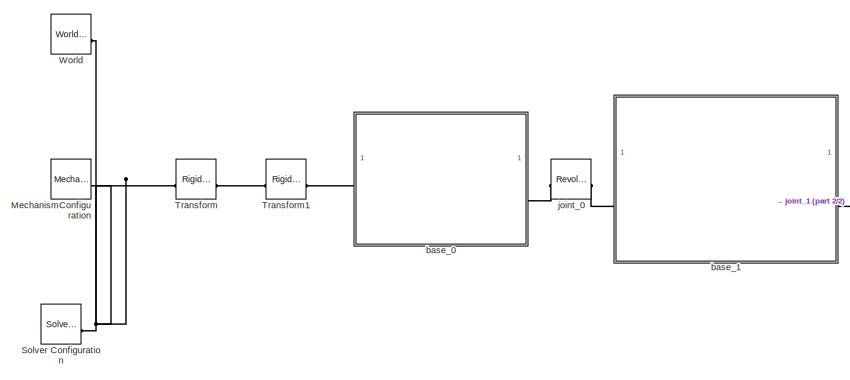
[diagram: root canvas - part 1/2, left side, full height]
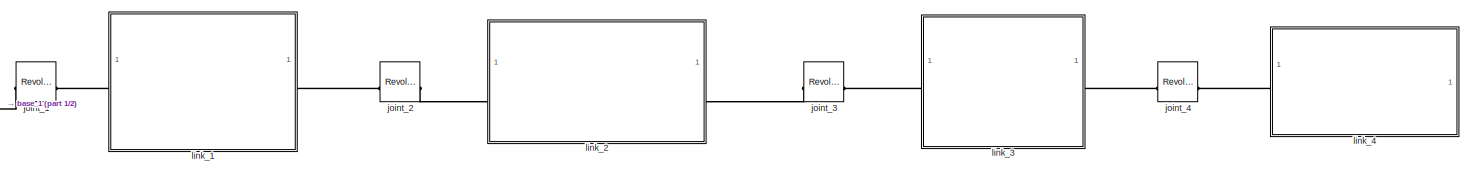
[diagram: root canvas - part 2/2, middle right region]
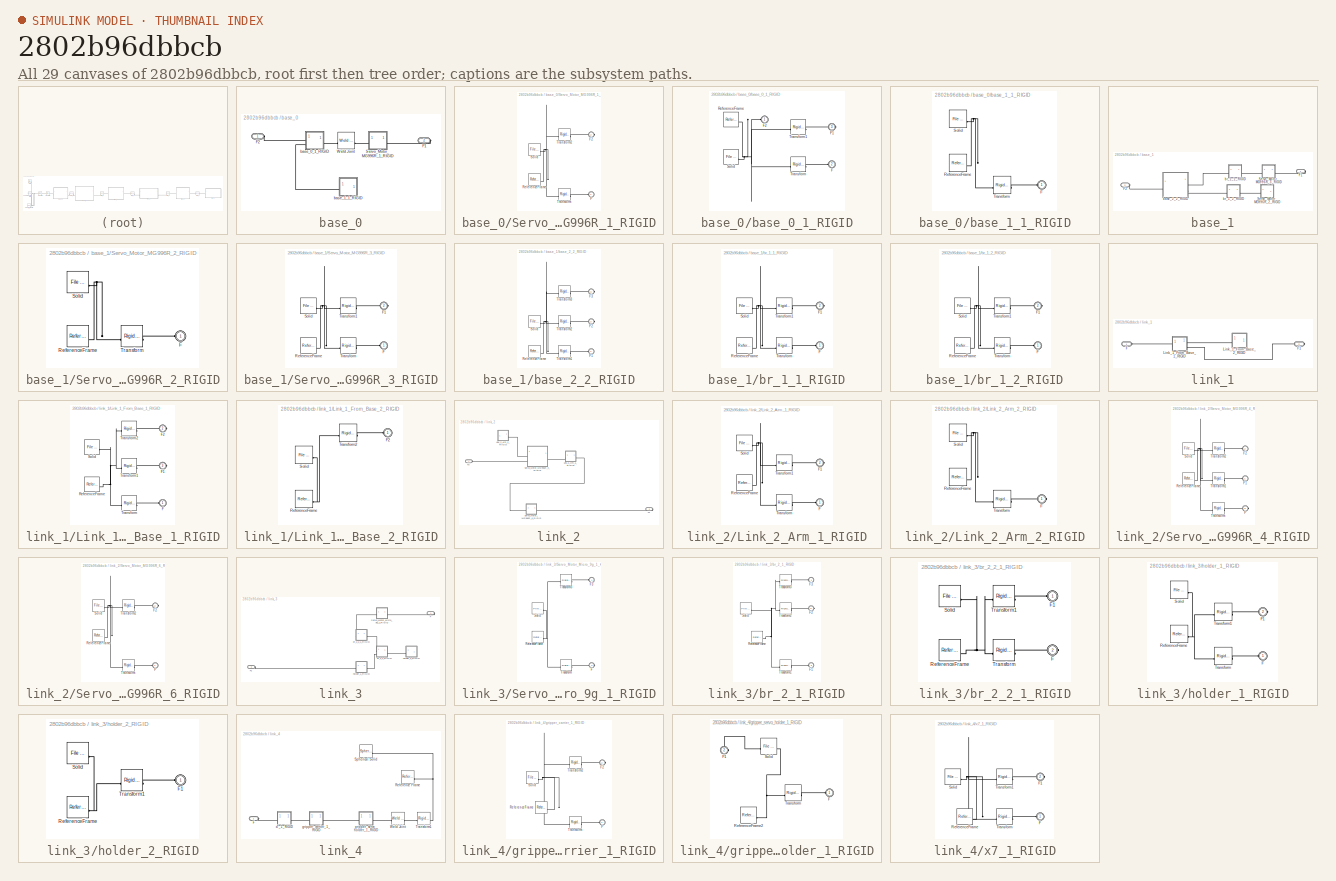
[diagram: thumbnail index - all 29 canvases of the model, root first then tree order]
MODEL slx_2802b96dbbcb
KIND model
CONFIG AbsTol = auto
CONFIG EnableMultiTasking = off
CONFIG FixedStep = auto
CONFIG MaxStep = auto
CONFIG MinStep = auto
CONFIG RelTol = 1e-3
CONFIG SampleTimeConstraint = Unconstrained
CONFIG SolverName = VariableStepAuto
CONFIG StartTime = 0.0
CONFIG StopTime = 10.0
WORKSPACE source: external: MATLAB File  (data not in archive)
BLOCK [Reference] MechanismConfiguration  REF=sm_lib/Utilities/Mechanism
Configuration
  SourceBlock = sm_lib/Utilities/Mechanism\nConfiguration
  SourceType = Mechanism\nConfiguration
BLOCK [Reference] Solver Configuration  REF=nesl_utility/Solver
Configuration
  SourceBlock = nesl_utility/Solver\nConfiguration
  SourceType = Solver\nConfiguration
BLOCK [Reference] Transform  REF=sm_lib/Frames and
Transforms/Rigid
Transform
  SourceBlock = sm_lib/Frames and\nTransforms/Rigid\nTransform
  SourceType = Rigid\nTransform
BLOCK [Reference] Transform1  REF=sm_lib/Frames and
Transforms/Rigid
Transform
  SourceBlock = sm_lib/Frames and\nTransforms/Rigid\nTransform
  SourceType = Rigid\nTransform
BLOCK [Reference] World  REF=sm_lib/Frames and
Transforms/World Frame
  SourceBlock = sm_lib/Frames and\nTransforms/World Frame
  SourceType = World Frame
BLOCK [SubSystem] base_0
BLOCK [PMIOPort] base_0/F1
  Port = 2
  Side = Right
BLOCK [PMIOPort] base_0/F2
  Side = Left
BLOCK [SubSystem] base_0/Servo_Motor_MG996R_1_RIGID
BLOCK [PMIOPort] base_0/Servo_Motor_MG996R_1_RIGID/F
  Side = Left
BLOCK [PMIOPort] base_0/Servo_Motor_MG996R_1_RIGID/F2
  Port = 2
  Side = Right
BLOCK [Reference] base_0/Servo_Motor_MG996R_1_RIGID/ReferenceFrame  REF=sm_lib/Frames and
Transforms/Reference
Frame
  SourceBlock = sm_lib/Frames and\nTransforms/Reference\nFrame
  SourceType = Reference\nFrame
BLOCK [Reference] base_0/Servo_Motor_MG996R_1_RIGID/Solid  REF=sm_lib/Body Elements/File Solid
  SourceBlock = sm_lib/Body Elements/File Solid
  SourceType = File Solid
BLOCK [Reference] base_0/Servo_Motor_MG996R_1_RIGID/Transform  REF=sm_lib/Frames and
Transforms/Rigid
Transform
  SourceBlock = sm_lib/Frames and\nTransforms/Rigid\nTransform
  SourceType = Rigid\nTransform
BLOCK [Reference] base_0/Servo_Motor_MG996R_1_RIGID/Transform2  REF=sm_lib/Frames and
Transforms/Rigid
Transform
  SourceBlock = sm_lib/Frames and\nTransforms/Rigid\nTransform
  SourceType = Rigid\nTransform
BLOCK [Reference] base_0/Weld Joint  REF=sm_lib/Joints/Weld Joint
  SourceBlock = sm_lib/Joints/Weld Joint
  SourceType = Weld Joint
BLOCK [SubSystem] base_0/base_0_1_RIGID
BLOCK [PMIOPort] base_0/base_0_1_RIGID/F
  Port = 2
  Side = Left
BLOCK [PMIOPort] base_0/base_0_1_RIGID/F1
  Port = 3
  Side = Right
BLOCK [PMIOPort] base_0/base_0_1_RIGID/F2
  Side = Left
BLOCK [Reference] base_0/base_0_1_RIGID/ReferenceFrame  REF=sm_lib/Frames and
Transforms/Reference
Frame
  SourceBlock = sm_lib/Frames and\nTransforms/Reference\nFrame
  SourceType = Reference\nFrame
BLOCK [Reference] base_0/base_0_1_RIGID/Solid  REF=sm_lib/Body Elements/File Solid
  SourceBlock = sm_lib/Body Elements/File Solid
  SourceType = File Solid
BLOCK [Reference] base_0/base_0_1_RIGID/Transform  REF=sm_lib/Frames and
Transforms/Rigid
Transform
  SourceBlock = sm_lib/Frames and\nTransforms/Rigid\nTransform
  SourceType = Rigid\nTransform
BLOCK [Reference] base_0/base_0_1_RIGID/Transform1  REF=sm_lib/Frames and
Transforms/Rigid
Transform
  SourceBlock = sm_lib/Frames and\nTransforms/Rigid\nTransform
  SourceType = Rigid\nTransform
BLOCK [SubSystem] base_0/base_1_1_RIGID
BLOCK [PMIOPort] base_0/base_1_1_RIGID/F
  Side = Left
BLOCK [Reference] base_0/base_1_1_RIGID/ReferenceFrame  REF=sm_lib/Frames and
Transforms/Reference
Frame
  SourceBlock = sm_lib/Frames and\nTransforms/Reference\nFrame
  SourceType = Reference\nFrame
BLOCK [Reference] base_0/base_1_1_RIGID/Solid  REF=sm_lib/Body Elements/File Solid
  SourceBlock = sm_lib/Body Elements/File Solid
  SourceType = File Solid
BLOCK [Reference] base_0/base_1_1_RIGID/Transform  REF=sm_lib/Frames and
Transforms/Rigid
Transform
  SourceBlock = sm_lib/Frames and\nTransforms/Rigid\nTransform
  SourceType = Rigid\nTransform
BLOCK [SubSystem] base_1
BLOCK [PMIOPort] base_1/F1
  Side = Right
BLOCK [PMIOPort] base_1/F2
  Port = 2
  Side = Left
BLOCK [SubSystem] base_1/Servo_Motor_MG996R_2_RIGID
BLOCK [PMIOPort] base_1/Servo_Motor_MG996R_2_RIGID/F
  Side = Left
BLOCK [Reference] base_1/Servo_Motor_MG996R_2_RIGID/ReferenceFrame  REF=sm_lib/Frames and
Transforms/Reference
Frame
  SourceBlock = sm_lib/Frames and\nTransforms/Reference\nFrame
  SourceType = Reference\nFrame
BLOCK [Reference] base_1/Servo_Motor_MG996R_2_RIGID/Solid  REF=sm_lib/Body Elements/File Solid
  SourceBlock = sm_lib/Body Elements/File Solid
  SourceType = File Solid
BLOCK [Reference] base_1/Servo_Motor_MG996R_2_RIGID/Transform  REF=sm_lib/Frames and
Transforms/Rigid
Transform
  SourceBlock = sm_lib/Frames and\nTransforms/Rigid\nTransform
  SourceType = Rigid\nTransform
BLOCK [SubSystem] base_1/Servo_Motor_MG996R_3_RIGID
BLOCK [PMIOPort] base_1/Servo_Motor_MG996R_3_RIGID/F
  Side = Left
BLOCK [PMIOPort] base_1/Servo_Motor_MG996R_3_RIGID/F1
  Port = 2
  Side = Right
BLOCK [Reference] base_1/Servo_Motor_MG996R_3_RIGID/ReferenceFrame  REF=sm_lib/Frames and
Transforms/Reference
Frame
  SourceBlock = sm_lib/Frames and\nTransforms/Reference\nFrame
  SourceType = Reference\nFrame
BLOCK [Reference] base_1/Servo_Motor_MG996R_3_RIGID/Solid  REF=sm_lib/Body Elements/File Solid
  SourceBlock = sm_lib/Body Elements/File Solid
  SourceType = File Solid
BLOCK [Reference] base_1/Servo_Motor_MG996R_3_RIGID/Transform  REF=sm_lib/Frames and
Transforms/Rigid
Transform
  SourceBlock = sm_lib/Frames and\nTransforms/Rigid\nTransform
  SourceType = Rigid\nTransform
BLOCK [Reference] base_1/Servo_Motor_MG996R_3_RIGID/Transform1  REF=sm_lib/Frames and
Transforms/Rigid
Transform
  SourceBlock = sm_lib/Frames and\nTransforms/Rigid\nTransform
  SourceType = Rigid\nTransform
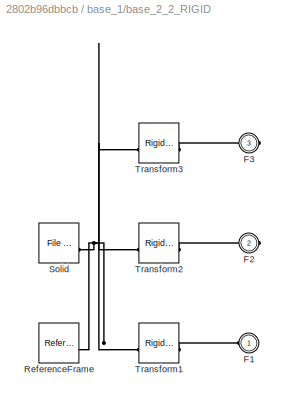
BLOCK [SubSystem] base_1/base_2_2_RIGID
BLOCK [PMIOPort] base_1/base_2_2_RIGID/F1
  Side = Left
BLOCK [PMIOPort] base_1/base_2_2_RIGID/F2
  Port = 2
  Side = Right
BLOCK [PMIOPort] base_1/base_2_2_RIGID/F3
  Port = 3
  Side = Right
BLOCK [Reference] base_1/base_2_2_RIGID/ReferenceFrame  REF=sm_lib/Frames and
Transforms/Reference
Frame
  SourceBlock = sm_lib/Frames and\nTransforms/Reference\nFrame
  SourceType = Reference\nFrame
BLOCK [Reference] base_1/base_2_2_RIGID/Solid  REF=sm_lib/Body Elements/File Solid
  SourceBlock = sm_lib/Body Elements/File Solid
  SourceType = File Solid
BLOCK [Reference] base_1/base_2_2_RIGID/Transform1  REF=sm_lib/Frames and
Transforms/Rigid
Transform
  SourceBlock = sm_lib/Frames and\nTransforms/Rigid\nTransform
  SourceType = Rigid\nTransform
BLOCK [Reference] base_1/base_2_2_RIGID/Transform2  REF=sm_lib/Frames and
Transforms/Rigid
Transform
  SourceBlock = sm_lib/Frames and\nTransforms/Rigid\nTransform
  SourceType = Rigid\nTransform
BLOCK [Reference] base_1/base_2_2_RIGID/Transform3  REF=sm_lib/Frames and
Transforms/Rigid
Transform
  SourceBlock = sm_lib/Frames and\nTransforms/Rigid\nTransform
  SourceType = Rigid\nTransform
BLOCK [SubSystem] base_1/br_1_1_RIGID
BLOCK [PMIOPort] base_1/br_1_1_RIGID/F
  Side = Left
BLOCK [PMIOPort] base_1/br_1_1_RIGID/F1
  Port = 2
  Side = Right
BLOCK [Reference] base_1/br_1_1_RIGID/ReferenceFrame  REF=sm_lib/Frames and
Transforms/Reference
Frame
  SourceBlock = sm_lib/Frames and\nTransforms/Reference\nFrame
  SourceType = Reference\nFrame
BLOCK [Reference] base_1/br_1_1_RIGID/Solid  REF=sm_lib/Body Elements/File Solid
  SourceBlock = sm_lib/Body Elements/File Solid
  SourceType = File Solid
BLOCK [Reference] base_1/br_1_1_RIGID/Transform  REF=sm_lib/Frames and
Transforms/Rigid
Transform
  SourceBlock = sm_lib/Frames and\nTransforms/Rigid\nTransform
  SourceType = Rigid\nTransform
BLOCK [Reference] base_1/br_1_1_RIGID/Transform1  REF=sm_lib/Frames and
Transforms/Rigid
Transform
  SourceBlock = sm_lib/Frames and\nTransforms/Rigid\nTransform
  SourceType = Rigid\nTransform
BLOCK [SubSystem] base_1/br_1_2_RIGID
BLOCK [PMIOPort] base_1/br_1_2_RIGID/F
  Side = Left
BLOCK [PMIOPort] base_1/br_1_2_RIGID/F1
  Port = 2
  Side = Right
BLOCK [Reference] base_1/br_1_2_RIGID/ReferenceFrame  REF=sm_lib/Frames and
Transforms/Reference
Frame
  SourceBlock = sm_lib/Frames and\nTransforms/Reference\nFrame
  SourceType = Reference\nFrame
BLOCK [Reference] base_1/br_1_2_RIGID/Solid  REF=sm_lib/Body Elements/File Solid
  SourceBlock = sm_lib/Body Elements/File Solid
  SourceType = File Solid
BLOCK [Reference] base_1/br_1_2_RIGID/Transform  REF=sm_lib/Frames and
Transforms/Rigid
Transform
  SourceBlock = sm_lib/Frames and\nTransforms/Rigid\nTransform
  SourceType = Rigid\nTransform
BLOCK [Reference] base_1/br_1_2_RIGID/Transform1  REF=sm_lib/Frames and
Transforms/Rigid
Transform
  SourceBlock = sm_lib/Frames and\nTransforms/Rigid\nTransform
  SourceType = Rigid\nTransform
BLOCK [Reference] joint_0  REF=sm_lib/Joints/Revolute Joint
  SourceBlock = sm_lib/Joints/Revolute Joint
  SourceType = Revolute Joint
BLOCK [Reference] joint_1  REF=sm_lib/Joints/Revolute Joint
  SourceBlock = sm_lib/Joints/Revolute Joint
  SourceType = Revolute Joint
BLOCK [Reference] joint_2  REF=sm_lib/Joints/Revolute Joint
  SourceBlock = sm_lib/Joints/Revolute Joint
  SourceType = Revolute Joint
BLOCK [Reference] joint_3  REF=sm_lib/Joints/Revolute Joint
  SourceBlock = sm_lib/Joints/Revolute Joint
  SourceType = Revolute Joint
BLOCK [Reference] joint_4  REF=sm_lib/Joints/Revolute Joint
  SourceBlock = sm_lib/Joints/Revolute Joint
  SourceType = Revolute Joint
BLOCK [SubSystem] link_1
BLOCK [PMIOPort] link_1/F
  Side = Left
BLOCK [PMIOPort] link_1/F1
  Port = 2
  Side = Right
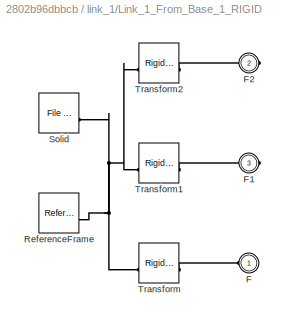
BLOCK [SubSystem] link_1/Link_1_From_Base_1_RIGID
BLOCK [PMIOPort] link_1/Link_1_From_Base_1_RIGID/F
  Side = Left
BLOCK [PMIOPort] link_1/Link_1_From_Base_1_RIGID/F1
  Port = 3
  Side = Right
BLOCK [PMIOPort] link_1/Link_1_From_Base_1_RIGID/F2
  Port = 2
  Side = Right
BLOCK [Reference] link_1/Link_1_From_Base_1_RIGID/ReferenceFrame  REF=sm_lib/Frames and
Transforms/Reference
Frame
  SourceBlock = sm_lib/Frames and\nTransforms/Reference\nFrame
  SourceType = Reference\nFrame
BLOCK [Reference] link_1/Link_1_From_Base_1_RIGID/Solid  REF=sm_lib/Body Elements/File Solid
  SourceBlock = sm_lib/Body Elements/File Solid
  SourceType = File Solid
BLOCK [Reference] link_1/Link_1_From_Base_1_RIGID/Transform  REF=sm_lib/Frames and
Transforms/Rigid
Transform
  SourceBlock = sm_lib/Frames and\nTransforms/Rigid\nTransform
  SourceType = Rigid\nTransform
BLOCK [Reference] link_1/Link_1_From_Base_1_RIGID/Transform1  REF=sm_lib/Frames and
Transforms/Rigid
Transform
  SourceBlock = sm_lib/Frames and\nTransforms/Rigid\nTransform
  SourceType = Rigid\nTransform
BLOCK [Reference] link_1/Link_1_From_Base_1_RIGID/Transform2  REF=sm_lib/Frames and
Transforms/Rigid
Transform
  SourceBlock = sm_lib/Frames and\nTransforms/Rigid\nTransform
  SourceType = Rigid\nTransform
BLOCK [SubSystem] link_1/Link_1_From_Base_2_RIGID
BLOCK [PMIOPort] link_1/Link_1_From_Base_2_RIGID/F2
  Side = Left
BLOCK [Reference] link_1/Link_1_From_Base_2_RIGID/ReferenceFrame  REF=sm_lib/Frames and
Transforms/Reference
Frame
  SourceBlock = sm_lib/Frames and\nTransforms/Reference\nFrame
  SourceType = Reference\nFrame
BLOCK [Reference] link_1/Link_1_From_Base_2_RIGID/Solid  REF=sm_lib/Body Elements/File Solid
  SourceBlock = sm_lib/Body Elements/File Solid
  SourceType = File Solid
BLOCK [Reference] link_1/Link_1_From_Base_2_RIGID/Transform2  REF=sm_lib/Frames and
Transforms/Rigid
Transform
  SourceBlock = sm_lib/Frames and\nTransforms/Rigid\nTransform
  SourceType = Rigid\nTransform
BLOCK [SubSystem] link_2
BLOCK [PMIOPort] link_2/F1
  Port = 2
  Side = Right
BLOCK [PMIOPort] link_2/F2
  Side = Left
BLOCK [SubSystem] link_2/Link_2_Arm_1_RIGID
BLOCK [PMIOPort] link_2/Link_2_Arm_1_RIGID/F
  Side = Left
BLOCK [PMIOPort] link_2/Link_2_Arm_1_RIGID/F1
  Port = 2
  Side = Right
BLOCK [Reference] link_2/Link_2_Arm_1_RIGID/ReferenceFrame  REF=sm_lib/Frames and
Transforms/Reference
Frame
  SourceBlock = sm_lib/Frames and\nTransforms/Reference\nFrame
  SourceType = Reference\nFrame
BLOCK [Reference] link_2/Link_2_Arm_1_RIGID/Solid  REF=sm_lib/Body Elements/File Solid
  SourceBlock = sm_lib/Body Elements/File Solid
  SourceType = File Solid
BLOCK [Reference] link_2/Link_2_Arm_1_RIGID/Transform  REF=sm_lib/Frames and
Transforms/Rigid
Transform
  SourceBlock = sm_lib/Frames and\nTransforms/Rigid\nTransform
  SourceType = Rigid\nTransform
BLOCK [Reference] link_2/Link_2_Arm_1_RIGID/Transform1  REF=sm_lib/Frames and
Transforms/Rigid
Transform
  SourceBlock = sm_lib/Frames and\nTransforms/Rigid\nTransform
  SourceType = Rigid\nTransform
BLOCK [SubSystem] link_2/Link_2_Arm_2_RIGID
BLOCK [PMIOPort] link_2/Link_2_Arm_2_RIGID/F
  Side = Right
BLOCK [Reference] link_2/Link_2_Arm_2_RIGID/ReferenceFrame  REF=sm_lib/Frames and
Transforms/Reference
Frame
  SourceBlock = sm_lib/Frames and\nTransforms/Reference\nFrame
  SourceType = Reference\nFrame
BLOCK [Reference] link_2/Link_2_Arm_2_RIGID/Solid  REF=sm_lib/Body Elements/File Solid
  SourceBlock = sm_lib/Body Elements/File Solid
  SourceType = File Solid
BLOCK [Reference] link_2/Link_2_Arm_2_RIGID/Transform  REF=sm_lib/Frames and
Transforms/Rigid
Transform
  SourceBlock = sm_lib/Frames and\nTransforms/Rigid\nTransform
  SourceType = Rigid\nTransform
BLOCK [SubSystem] link_2/Servo_Motor_MG996R_4_RIGID
BLOCK [PMIOPort] link_2/Servo_Motor_MG996R_4_RIGID/F
  Port = 3
  Side = Right
BLOCK [PMIOPort] link_2/Servo_Motor_MG996R_4_RIGID/F1
  Side = Left
BLOCK [PMIOPort] link_2/Servo_Motor_MG996R_4_RIGID/F2
  Port = 2
  Side = Left
BLOCK [Reference] link_2/Servo_Motor_MG996R_4_RIGID/ReferenceFrame  REF=sm_lib/Frames and
Transforms/Reference
Frame
  SourceBlock = sm_lib/Frames and\nTransforms/Reference\nFrame
  SourceType = Reference\nFrame
BLOCK [Reference] link_2/Servo_Motor_MG996R_4_RIGID/Solid  REF=sm_lib/Body Elements/File Solid
  SourceBlock = sm_lib/Body Elements/File Solid
  SourceType = File Solid
BLOCK [Reference] link_2/Servo_Motor_MG996R_4_RIGID/Transform  REF=sm_lib/Frames and
Transforms/Rigid
Transform
  SourceBlock = sm_lib/Frames and\nTransforms/Rigid\nTransform
  SourceType = Rigid\nTransform
BLOCK [Reference] link_2/Servo_Motor_MG996R_4_RIGID/Transform1  REF=sm_lib/Frames and
Transforms/Rigid
Transform
  SourceBlock = sm_lib/Frames and\nTransforms/Rigid\nTransform
  SourceType = Rigid\nTransform
BLOCK [Reference] link_2/Servo_Motor_MG996R_4_RIGID/Transform2  REF=sm_lib/Frames and
Transforms/Rigid
Transform
  SourceBlock = sm_lib/Frames and\nTransforms/Rigid\nTransform
  SourceType = Rigid\nTransform
BLOCK [SubSystem] link_2/Servo_Motor_MG996R_6_RIGID
BLOCK [PMIOPort] link_2/Servo_Motor_MG996R_6_RIGID/F
  Side = Left
BLOCK [PMIOPort] link_2/Servo_Motor_MG996R_6_RIGID/F2
  Port = 2
  Side = Right
BLOCK [Reference] link_2/Servo_Motor_MG996R_6_RIGID/ReferenceFrame  REF=sm_lib/Frames and
Transforms/Reference
Frame
  SourceBlock = sm_lib/Frames and\nTransforms/Reference\nFrame
  SourceType = Reference\nFrame
BLOCK [Reference] link_2/Servo_Motor_MG996R_6_RIGID/Solid  REF=sm_lib/Body Elements/File Solid
  SourceBlock = sm_lib/Body Elements/File Solid
  SourceType = File Solid
BLOCK [Reference] link_2/Servo_Motor_MG996R_6_RIGID/Transform  REF=sm_lib/Frames and
Transforms/Rigid
Transform
  SourceBlock = sm_lib/Frames and\nTransforms/Rigid\nTransform
  SourceType = Rigid\nTransform
BLOCK [Reference] link_2/Servo_Motor_MG996R_6_RIGID/Transform2  REF=sm_lib/Frames and
Transforms/Rigid
Transform
  SourceBlock = sm_lib/Frames and\nTransforms/Rigid\nTransform
  SourceType = Rigid\nTransform
BLOCK [SubSystem] link_3
BLOCK [PMIOPort] link_3/F
  Side = Right
BLOCK [PMIOPort] link_3/F1
  Port = 2
  Side = Left
BLOCK [SubSystem] link_3/Servo_Motor_Micro_9g_1_RIGID
BLOCK [PMIOPort] link_3/Servo_Motor_Micro_9g_1_RIGID/F
  Port = 2
  Side = Right
BLOCK [PMIOPort] link_3/Servo_Motor_Micro_9g_1_RIGID/F3
  Side = Left
BLOCK [Reference] link_3/Servo_Motor_Micro_9g_1_RIGID/ReferenceFrame  REF=sm_lib/Frames and
Transforms/Reference
Frame
  SourceBlock = sm_lib/Frames and\nTransforms/Reference\nFrame
  SourceType = Reference\nFrame
BLOCK [Reference] link_3/Servo_Motor_Micro_9g_1_RIGID/Solid  REF=sm_lib/Body Elements/File Solid
  SourceBlock = sm_lib/Body Elements/File Solid
  SourceType = File Solid
BLOCK [Reference] link_3/Servo_Motor_Micro_9g_1_RIGID/Transform  REF=sm_lib/Frames and
Transforms/Rigid
Transform
  SourceBlock = sm_lib/Frames and\nTransforms/Rigid\nTransform
  SourceType = Rigid\nTransform
BLOCK [Reference] link_3/Servo_Motor_Micro_9g_1_RIGID/Transform3  REF=sm_lib/Frames and
Transforms/Rigid
Transform
  SourceBlock = sm_lib/Frames and\nTransforms/Rigid\nTransform
  SourceType = Rigid\nTransform
BLOCK [SubSystem] link_3/br_2_1_RIGID
BLOCK [PMIOPort] link_3/br_2_1_RIGID/F1
  Port = 2
  Side = Left
BLOCK [PMIOPort] link_3/br_2_1_RIGID/F2
  Port = 3
  Side = Right
BLOCK [PMIOPort] link_3/br_2_1_RIGID/F3
  Side = Left
BLOCK [Reference] link_3/br_2_1_RIGID/ReferenceFrame  REF=sm_lib/Frames and
Transforms/Reference
Frame
  SourceBlock = sm_lib/Frames and\nTransforms/Reference\nFrame
  SourceType = Reference\nFrame
BLOCK [Reference] link_3/br_2_1_RIGID/Solid  REF=sm_lib/Body Elements/File Solid
  SourceBlock = sm_lib/Body Elements/File Solid
  SourceType = File Solid
BLOCK [Reference] link_3/br_2_1_RIGID/Transform1  REF=sm_lib/Frames and
Transforms/Rigid
Transform
  SourceBlock = sm_lib/Frames and\nTransforms/Rigid\nTransform
  SourceType = Rigid\nTransform
BLOCK [Reference] link_3/br_2_1_RIGID/Transform2  REF=sm_lib/Frames and
Transforms/Rigid
Transform
  SourceBlock = sm_lib/Frames and\nTransforms/Rigid\nTransform
  SourceType = Rigid\nTransform
BLOCK [Reference] link_3/br_2_1_RIGID/Transform3  REF=sm_lib/Frames and
Transforms/Rigid
Transform
  SourceBlock = sm_lib/Frames and\nTransforms/Rigid\nTransform
  SourceType = Rigid\nTransform
BLOCK [SubSystem] link_3/br_2_2_1_RIGID
BLOCK [PMIOPort] link_3/br_2_2_1_RIGID/F
  Port = 2
  Side = Right
BLOCK [PMIOPort] link_3/br_2_2_1_RIGID/F1
  Side = Left
BLOCK [Reference] link_3/br_2_2_1_RIGID/ReferenceFrame  REF=sm_lib/Frames and
Transforms/Reference
Frame
  SourceBlock = sm_lib/Frames and\nTransforms/Reference\nFrame
  SourceType = Reference\nFrame
BLOCK [Reference] link_3/br_2_2_1_RIGID/Solid  REF=sm_lib/Body Elements/File Solid
  SourceBlock = sm_lib/Body Elements/File Solid
  SourceType = File Solid
BLOCK [Reference] link_3/br_2_2_1_RIGID/Transform  REF=sm_lib/Frames and
Transforms/Rigid
Transform
  SourceBlock = sm_lib/Frames and\nTransforms/Rigid\nTransform
  SourceType = Rigid\nTransform
BLOCK [Reference] link_3/br_2_2_1_RIGID/Transform1  REF=sm_lib/Frames and
Transforms/Rigid
Transform
  SourceBlock = sm_lib/Frames and\nTransforms/Rigid\nTransform
  SourceType = Rigid\nTransform
BLOCK [SubSystem] link_3/holder_1_RIGID
BLOCK [PMIOPort] link_3/holder_1_RIGID/F
  Side = Left
BLOCK [PMIOPort] link_3/holder_1_RIGID/F1
  Port = 2
  Side = Right
BLOCK [Reference] link_3/holder_1_RIGID/ReferenceFrame  REF=sm_lib/Frames and
Transforms/Reference
Frame
  SourceBlock = sm_lib/Frames and\nTransforms/Reference\nFrame
  SourceType = Reference\nFrame
BLOCK [Reference] link_3/holder_1_RIGID/Solid  REF=sm_lib/Body Elements/File Solid
  SourceBlock = sm_lib/Body Elements/File Solid
  SourceType = File Solid
BLOCK [Reference] link_3/holder_1_RIGID/Transform  REF=sm_lib/Frames and
Transforms/Rigid
Transform
  SourceBlock = sm_lib/Frames and\nTransforms/Rigid\nTransform
  SourceType = Rigid\nTransform
BLOCK [Reference] link_3/holder_1_RIGID/Transform1  REF=sm_lib/Frames and
Transforms/Rigid
Transform
  SourceBlock = sm_lib/Frames and\nTransforms/Rigid\nTransform
  SourceType = Rigid\nTransform
BLOCK [SubSystem] link_3/holder_2_RIGID
BLOCK [PMIOPort] link_3/holder_2_RIGID/F1
  Side = Left
BLOCK [Reference] link_3/holder_2_RIGID/ReferenceFrame  REF=sm_lib/Frames and
Transforms/Reference
Frame
  SourceBlock = sm_lib/Frames and\nTransforms/Reference\nFrame
  SourceType = Reference\nFrame
BLOCK [Reference] link_3/holder_2_RIGID/Solid  REF=sm_lib/Body Elements/File Solid
  SourceBlock = sm_lib/Body Elements/File Solid
  SourceType = File Solid
BLOCK [Reference] link_3/holder_2_RIGID/Transform1  REF=sm_lib/Frames and
Transforms/Rigid
Transform
  SourceBlock = sm_lib/Frames and\nTransforms/Rigid\nTransform
  SourceType = Rigid\nTransform
BLOCK [SubSystem] link_4
BLOCK [PMIOPort] link_4/F
  Side = Left
BLOCK [Reference] link_4/Reference Frame  REF=sm_lib/Frames and
Transforms/Reference
Frame
  SourceBlock = sm_lib/Frames and\nTransforms/Reference\nFrame
  SourceType = Reference\nFrame
BLOCK [Reference] link_4/Spherical Solid  REF=sm_lib/Body Elements/Spherical Solid
  SourceBlock = sm_lib/Body Elements/Spherical Solid
  SourceType = Spherical Solid
BLOCK [Reference] link_4/Transform1  REF=sm_lib/Frames and
Transforms/Rigid
Transform
  SourceBlock = sm_lib/Frames and\nTransforms/Rigid\nTransform
  SourceType = Rigid\nTransform
BLOCK [Reference] link_4/Weld Joint  REF=sm_lib/Joints/Weld Joint
  SourceBlock = sm_lib/Joints/Weld Joint
  SourceType = Weld Joint
BLOCK [SubSystem] link_4/gripper_carrier_1_RIGID
BLOCK [PMIOPort] link_4/gripper_carrier_1_RIGID/F
  Side = Left
BLOCK [PMIOPort] link_4/gripper_carrier_1_RIGID/F2
  Port = 2
  Side = Right
BLOCK [Reference] link_4/gripper_carrier_1_RIGID/ReferenceFrame  REF=sm_lib/Frames and
Transforms/Reference
Frame
  SourceBlock = sm_lib/Frames and\nTransforms/Reference\nFrame
  SourceType = Reference\nFrame
BLOCK [Reference] link_4/gripper_carrier_1_RIGID/Solid  REF=sm_lib/Body Elements/File Solid
  SourceBlock = sm_lib/Body Elements/File Solid
  SourceType = File Solid
BLOCK [Reference] link_4/gripper_carrier_1_RIGID/Transform  REF=sm_lib/Frames and
Transforms/Rigid
Transform
  SourceBlock = sm_lib/Frames and\nTransforms/Rigid\nTransform
  SourceType = Rigid\nTransform
BLOCK [Reference] link_4/gripper_carrier_1_RIGID/Transform2  REF=sm_lib/Frames and
Transforms/Rigid
Transform
  SourceBlock = sm_lib/Frames and\nTransforms/Rigid\nTransform
  SourceType = Rigid\nTransform
BLOCK [SubSystem] link_4/gripper_servo_holder_1_RIGID
BLOCK [PMIOPort] link_4/gripper_servo_holder_1_RIGID/F
  Side = Left
BLOCK [PMIOPort] link_4/gripper_servo_holder_1_RIGID/F1
  Port = 2
  Side = Right
BLOCK [Reference] link_4/gripper_servo_holder_1_RIGID/ReferenceFrame2  REF=sm_lib/Frames and
Transforms/Reference
Frame
  SourceBlock = sm_lib/Frames and\nTransforms/Reference\nFrame
  SourceType = Reference\nFrame
BLOCK [Reference] link_4/gripper_servo_holder_1_RIGID/Solid  REF=sm_lib/Body Elements/File Solid
  SourceBlock = sm_lib/Body Elements/File Solid
  SourceType = File Solid
BLOCK [Reference] link_4/gripper_servo_holder_1_RIGID/Transform  REF=sm_lib/Frames and
Transforms/Rigid
Transform
  SourceBlock = sm_lib/Frames and\nTransforms/Rigid\nTransform
  SourceType = Rigid\nTransform
BLOCK [SubSystem] link_4/x7_1_RIGID
BLOCK [PMIOPort] link_4/x7_1_RIGID/F
  Side = Left
BLOCK [PMIOPort] link_4/x7_1_RIGID/F1
  Port = 2
  Side = Right
BLOCK [Reference] link_4/x7_1_RIGID/ReferenceFrame  REF=sm_lib/Frames and
Transforms/Reference
Frame
  SourceBlock = sm_lib/Frames and\nTransforms/Reference\nFrame
  SourceType = Reference\nFrame
BLOCK [Reference] link_4/x7_1_RIGID/Solid  REF=sm_lib/Body Elements/File Solid
  SourceBlock = sm_lib/Body Elements/File Solid
  SourceType = File Solid
BLOCK [Reference] link_4/x7_1_RIGID/Transform  REF=sm_lib/Frames and
Transforms/Rigid
Transform
  SourceBlock = sm_lib/Frames and\nTransforms/Rigid\nTransform
  SourceType = Rigid\nTransform
BLOCK [Reference] link_4/x7_1_RIGID/Transform1  REF=sm_lib/Frames and
Transforms/Rigid
Transform
  SourceBlock = sm_lib/Frames and\nTransforms/Rigid\nTransform
  SourceType = Rigid\nTransform
PNET net1: MechanismConfiguration:RConn1 -- Solver Configuration:RConn1 -- Transform:LConn1 -- World:RConn1
PLINE Transform1:LConn1 -- Transform:RConn1
PLINE Transform1:RConn1 -- base_0:LConn1
PLINE base_0/F1:RConn1 -- base_0/Servo_Motor_MG996R_1_RIGID:RConn1
PLINE base_0/F2:RConn1 -- base_0/base_0_1_RIGID:LConn1
PLINE base_0/Servo_Motor_MG996R_1_RIGID/F2:RConn1 -- base_0/Servo_Motor_MG996R_1_RIGID/Transform2:RConn1
PLINE base_0/Servo_Motor_MG996R_1_RIGID/F:RConn1 -- base_0/Servo_Motor_MG996R_1_RIGID/Transform:RConn1
PNET net2: base_0/Servo_Motor_MG996R_1_RIGID/ReferenceFrame:RConn1 -- base_0/Servo_Motor_MG996R_1_RIGID/Solid:RConn1 -- base_0/Servo_Motor_MG996R_1_RIGID/Transform2:LConn1 -- base_0/Servo_Motor_MG996R_1_RIGID/Transform:LConn1
PLINE base_0/Servo_Motor_MG996R_1_RIGID:LConn1 -- base_0/Weld Joint:RConn1
PLINE base_0/Weld Joint:LConn1 -- base_0/base_0_1_RIGID:RConn1
PLINE base_0/base_0_1_RIGID/F1:RConn1 -- base_0/base_0_1_RIGID/Transform1:RConn1
PNET net3: base_0/base_0_1_RIGID/F2:RConn1 -- base_0/base_0_1_RIGID/ReferenceFrame:RConn1 -- base_0/base_0_1_RIGID/Solid:RConn1 -- base_0/base_0_1_RIGID/Transform1:LConn1 -- base_0/base_0_1_RIGID/Transform:LConn1
PLINE base_0/base_0_1_RIGID/F:RConn1 -- base_0/base_0_1_RIGID/Transform:RConn1
PLINE base_0/base_0_1_RIGID:LConn2 -- base_0/base_1_1_RIGID:LConn1
PLINE base_0/base_1_1_RIGID/F:RConn1 -- base_0/base_1_1_RIGID/Transform:RConn1
PNET net4: base_0/base_1_1_RIGID/ReferenceFrame:RConn1 -- base_0/base_1_1_RIGID/Solid:RConn1 -- base_0/base_1_1_RIGID/Transform:LConn1
PLINE base_0:RConn1 -- joint_0:LConn1
PLINE base_1/F1:RConn1 -- base_1/Servo_Motor_MG996R_3_RIGID:RConn1
PLINE base_1/F2:RConn1 -- base_1/base_2_2_RIGID:LConn1
PLINE base_1/Servo_Motor_MG996R_2_RIGID/F:RConn1 -- base_1/Servo_Motor_MG996R_2_RIGID/Transform:RConn1
PNET net5: base_1/Servo_Motor_MG996R_2_RIGID/ReferenceFrame:RConn1 -- base_1/Servo_Motor_MG996R_2_RIGID/Solid:RConn1 -- base_1/Servo_Motor_MG996R_2_RIGID/Transform:LConn1
PLINE base_1/Servo_Motor_MG996R_2_RIGID:LConn1 -- base_1/br_1_2_RIGID:RConn1
PLINE base_1/Servo_Motor_MG996R_3_RIGID/F1:RConn1 -- base_1/Servo_Motor_MG996R_3_RIGID/Transform1:RConn1
PLINE base_1/Servo_Motor_MG996R_3_RIGID/F:RConn1 -- base_1/Servo_Motor_MG996R_3_RIGID/Transform:RConn1
PNET net6: base_1/Servo_Motor_MG996R_3_RIGID/ReferenceFrame:RConn1 -- base_1/Servo_Motor_MG996R_3_RIGID/Solid:RConn1 -- base_1/Servo_Motor_MG996R_3_RIGID/Transform1:LConn1 -- base_1/Servo_Motor_MG996R_3_RIGID/Transform:LConn1
PLINE base_1/Servo_Motor_MG996R_3_RIGID:LConn1 -- base_1/br_1_1_RIGID:RConn1
PLINE base_1/base_2_2_RIGID/F1:RConn1 -- base_1/base_2_2_RIGID/Transform1:RConn1
PLINE base_1/base_2_2_RIGID/F2:RConn1 -- base_1/base_2_2_RIGID/Transform2:RConn1
PLINE base_1/base_2_2_RIGID/F3:RConn1 -- base_1/base_2_2_RIGID/Transform3:RConn1
PNET net7: base_1/base_2_2_RIGID/ReferenceFrame:RConn1 -- base_1/base_2_2_RIGID/Solid:RConn1 -- base_1/base_2_2_RIGID/Transform1:LConn1 -- base_1/base_2_2_RIGID/Transform2:LConn1 -- base_1/base_2_2_RIGID/Transform3:LConn1
PLINE base_1/base_2_2_RIGID:RConn1 -- base_1/br_1_1_RIGID:LConn1
PLINE base_1/base_2_2_RIGID:RConn2 -- base_1/br_1_2_RIGID:LConn1
PLINE base_1/br_1_1_RIGID/F1:RConn1 -- base_1/br_1_1_RIGID/Transform1:RConn1
PLINE base_1/br_1_1_RIGID/F:RConn1 -- base_1/br_1_1_RIGID/Transform:RConn1
PNET net8: base_1/br_1_1_RIGID/ReferenceFrame:RConn1 -- base_1/br_1_1_RIGID/Solid:RConn1 -- base_1/br_1_1_RIGID/Transform1:LConn1 -- base_1/br_1_1_RIGID/Transform:LConn1
PLINE base_1/br_1_2_RIGID/F1:RConn1 -- base_1/br_1_2_RIGID/Transform1:RConn1
PLINE base_1/br_1_2_RIGID/F:RConn1 -- base_1/br_1_2_RIGID/Transform:RConn1
PNET net9: base_1/br_1_2_RIGID/ReferenceFrame:RConn1 -- base_1/br_1_2_RIGID/Solid:RConn1 -- base_1/br_1_2_RIGID/Transform1:LConn1 -- base_1/br_1_2_RIGID/Transform:LConn1
PLINE base_1:LConn1 -- joint_0:RConn1
PLINE base_1:RConn1 -- joint_1:LConn1
PLINE joint_1:RConn1 -- link_1:LConn1
PLINE joint_2:LConn1 -- link_1:RConn1
PLINE joint_2:RConn1 -- link_2:LConn1
PLINE joint_3:LConn1 -- link_2:RConn1
PLINE joint_3:RConn1 -- link_3:LConn1
PLINE joint_4:LConn1 -- link_3:RConn1
PLINE joint_4:RConn1 -- link_4:LConn1
PLINE link_1/F1:RConn1 -- link_1/Link_1_From_Base_1_RIGID:RConn2
PLINE link_1/F:RConn1 -- link_1/Link_1_From_Base_1_RIGID:LConn1
PLINE link_1/Link_1_From_Base_1_RIGID/F1:RConn1 -- link_1/Link_1_From_Base_1_RIGID/Transform1:RConn1
PLINE link_1/Link_1_From_Base_1_RIGID/F2:RConn1 -- link_1/Link_1_From_Base_1_RIGID/Transform2:RConn1
PLINE link_1/Link_1_From_Base_1_RIGID/F:RConn1 -- link_1/Link_1_From_Base_1_RIGID/Transform:RConn1
PNET net10: link_1/Link_1_From_Base_1_RIGID/ReferenceFrame:RConn1 -- link_1/Link_1_From_Base_1_RIGID/Solid:RConn1 -- link_1/Link_1_From_Base_1_RIGID/Transform1:LConn1 -- link_1/Link_1_From_Base_1_RIGID/Transform2:LConn1 -- link_1/Link_1_From_Base_1_RIGID/Transform:LConn1
PLINE link_1/Link_1_From_Base_1_RIGID:RConn1 -- link_1/Link_1_From_Base_2_RIGID:LConn1
PLINE link_1/Link_1_From_Base_2_RIGID/F2:RConn1 -- link_1/Link_1_From_Base_2_RIGID/Transform2:RConn1
PNET net11: link_1/Link_1_From_Base_2_RIGID/ReferenceFrame:RConn1 -- link_1/Link_1_From_Base_2_RIGID/Solid:RConn1 -- link_1/Link_1_From_Base_2_RIGID/Transform2:LConn1
PLINE link_2/F1:RConn1 -- link_2/Servo_Motor_MG996R_6_RIGID:RConn1
PLINE link_2/F2:RConn1 -- link_2/Servo_Motor_MG996R_4_RIGID:LConn2
PLINE link_2/Link_2_Arm_1_RIGID/F1:RConn1 -- link_2/Link_2_Arm_1_RIGID/Transform1:RConn1
PLINE link_2/Link_2_Arm_1_RIGID/F:RConn1 -- link_2/Link_2_Arm_1_RIGID/Transform:RConn1
PNET net12: link_2/Link_2_Arm_1_RIGID/ReferenceFrame:RConn1 -- link_2/Link_2_Arm_1_RIGID/Solid:RConn1 -- link_2/Link_2_Arm_1_RIGID/Transform1:LConn1 -- link_2/Link_2_Arm_1_RIGID/Transform:LConn1
PLINE link_2/Link_2_Arm_1_RIGID:LConn1 -- link_2/Servo_Motor_MG996R_4_RIGID:RConn1
PLINE link_2/Link_2_Arm_1_RIGID:RConn1 -- link_2/Servo_Motor_MG996R_6_RIGID:LConn1
PLINE link_2/Link_2_Arm_2_RIGID/F:RConn1 -- link_2/Link_2_Arm_2_RIGID/Transform:RConn1
PNET net13: link_2/Link_2_Arm_2_RIGID/ReferenceFrame:RConn1 -- link_2/Link_2_Arm_2_RIGID/Solid:RConn1 -- link_2/Link_2_Arm_2_RIGID/Transform:LConn1
PLINE link_2/Link_2_Arm_2_RIGID:RConn1 -- link_2/Servo_Motor_MG996R_4_RIGID:LConn1
PLINE link_2/Servo_Motor_MG996R_4_RIGID/F1:RConn1 -- link_2/Servo_Motor_MG996R_4_RIGID/Transform1:RConn1
PLINE link_2/Servo_Motor_MG996R_4_RIGID/F2:RConn1 -- link_2/Servo_Motor_MG996R_4_RIGID/Transform2:RConn1
PLINE link_2/Servo_Motor_MG996R_4_RIGID/F:RConn1 -- link_2/Servo_Motor_MG996R_4_RIGID/Transform:RConn1
PNET net14: link_2/Servo_Motor_MG996R_4_RIGID/ReferenceFrame:RConn1 -- link_2/Servo_Motor_MG996R_4_RIGID/Solid:RConn1 -- link_2/Servo_Motor_MG996R_4_RIGID/Transform1:LConn1 -- link_2/Servo_Motor_MG996R_4_RIGID/Transform2:LConn1 -- link_2/Servo_Motor_MG996R_4_RIGID/Transform:LConn1
PLINE link_2/Servo_Motor_MG996R_6_RIGID/F2:RConn1 -- link_2/Servo_Motor_MG996R_6_RIGID/Transform2:RConn1
PLINE link_2/Servo_Motor_MG996R_6_RIGID/F:RConn1 -- link_2/Servo_Motor_MG996R_6_RIGID/Transform:RConn1
PNET net15: link_2/Servo_Motor_MG996R_6_RIGID/ReferenceFrame:RConn1 -- link_2/Servo_Motor_MG996R_6_RIGID/Solid:RConn1 -- link_2/Servo_Motor_MG996R_6_RIGID/Transform2:LConn1 -- link_2/Servo_Motor_MG996R_6_RIGID/Transform:LConn1
PLINE link_3/F1:RConn1 -- link_3/holder_1_RIGID:LConn1
PLINE link_3/F:RConn1 -- link_3/Servo_Motor_Micro_9g_1_RIGID:RConn1
PLINE link_3/Servo_Motor_Micro_9g_1_RIGID/F3:RConn1 -- link_3/Servo_Motor_Micro_9g_1_RIGID/Transform3:RConn1
PLINE link_3/Servo_Motor_Micro_9g_1_RIGID/F:RConn1 -- link_3/Servo_Motor_Micro_9g_1_RIGID/Transform:RConn1
PNET net16: link_3/Servo_Motor_Micro_9g_1_RIGID/ReferenceFrame:RConn1 -- link_3/Servo_Motor_Micro_9g_1_RIGID/Solid:RConn1 -- link_3/Servo_Motor_Micro_9g_1_RIGID/Transform3:LConn1 -- link_3/Servo_Motor_Micro_9g_1_RIGID/Transform:LConn1
PLINE link_3/Servo_Motor_Micro_9g_1_RIGID:LConn1 -- link_3/br_2_2_1_RIGID:LConn1
PLINE link_3/br_2_1_RIGID/F1:RConn1 -- link_3/br_2_1_RIGID/Transform1:RConn1
PLINE link_3/br_2_1_RIGID/F2:RConn1 -- link_3/br_2_1_RIGID/Transform2:RConn1
PLINE link_3/br_2_1_RIGID/F3:RConn1 -- link_3/br_2_1_RIGID/Transform3:RConn1
PNET net17: link_3/br_2_1_RIGID/ReferenceFrame:RConn1 -- link_3/br_2_1_RIGID/Solid:RConn1 -- link_3/br_2_1_RIGID/Transform1:LConn1 -- link_3/br_2_1_RIGID/Transform2:LConn1 -- link_3/br_2_1_RIGID/Transform3:LConn1
PLINE link_3/br_2_1_RIGID:LConn1 -- link_3/br_2_2_1_RIGID:RConn1
PLINE link_3/br_2_1_RIGID:LConn2 -- link_3/holder_1_RIGID:RConn1
PLINE link_3/br_2_1_RIGID:RConn1 -- link_3/holder_2_RIGID:LConn1
PLINE link_3/br_2_2_1_RIGID/F1:RConn1 -- link_3/br_2_2_1_RIGID/Transform1:RConn1
PLINE link_3/br_2_2_1_RIGID/F:RConn1 -- link_3/br_2_2_1_RIGID/Transform:RConn1
PNET net18: link_3/br_2_2_1_RIGID/ReferenceFrame:RConn1 -- link_3/br_2_2_1_RIGID/Solid:RConn1 -- link_3/br_2_2_1_RIGID/Transform1:LConn1 -- link_3/br_2_2_1_RIGID/Transform:LConn1
PLINE link_3/holder_1_RIGID/F1:RConn1 -- link_3/holder_1_RIGID/Transform1:RConn1
PLINE link_3/holder_1_RIGID/F:RConn1 -- link_3/holder_1_RIGID/Transform:RConn1
PNET net19: link_3/holder_1_RIGID/ReferenceFrame:RConn1 -- link_3/holder_1_RIGID/Solid:RConn1 -- link_3/holder_1_RIGID/Transform1:LConn1 -- link_3/holder_1_RIGID/Transform:LConn1
PLINE link_3/holder_2_RIGID/F1:RConn1 -- link_3/holder_2_RIGID/Transform1:RConn1
PNET net20: link_3/holder_2_RIGID/ReferenceFrame:RConn1 -- link_3/holder_2_RIGID/Solid:RConn1 -- link_3/holder_2_RIGID/Transform1:LConn1
PLINE link_4/F:RConn1 -- link_4/x7_1_RIGID:LConn1
PNET net21: link_4/Reference Frame:RConn1 -- link_4/Spherical Solid:RConn1 -- link_4/Transform1:RConn1
PLINE link_4/Transform1:LConn1 -- link_4/Weld Joint:RConn1
PLINE link_4/Weld Joint:LConn1 -- link_4/gripper_servo_holder_1_RIGID:RConn1
PLINE link_4/gripper_carrier_1_RIGID/F2:RConn1 -- link_4/gripper_carrier_1_RIGID/Transform2:RConn1
PLINE link_4/gripper_carrier_1_RIGID/F:RConn1 -- link_4/gripper_carrier_1_RIGID/Transform:RConn1
PNET net22: link_4/gripper_carrier_1_RIGID/ReferenceFrame:RConn1 -- link_4/gripper_carrier_1_RIGID/Solid:RConn1 -- link_4/gripper_carrier_1_RIGID/Transform2:LConn1 -- link_4/gripper_carrier_1_RIGID/Transform:LConn1
PLINE link_4/gripper_carrier_1_RIGID:LConn1 -- link_4/x7_1_RIGID:RConn1
PLINE link_4/gripper_carrier_1_RIGID:RConn1 -- link_4/gripper_servo_holder_1_RIGID:LConn1
PLINE link_4/gripper_servo_holder_1_RIGID/F1:RConn1 -- link_4/gripper_servo_holder_1_RIGID/Solid:LConn1
PLINE link_4/gripper_servo_holder_1_RIGID/F:RConn1 -- link_4/gripper_servo_holder_1_RIGID/Transform:RConn1
PNET net23: link_4/gripper_servo_holder_1_RIGID/ReferenceFrame2:RConn1 -- link_4/gripper_servo_holder_1_RIGID/Solid:RConn1 -- link_4/gripper_servo_holder_1_RIGID/Transform:LConn1
PLINE link_4/x7_1_RIGID/F1:RConn1 -- link_4/x7_1_RIGID/Transform1:RConn1
PLINE link_4/x7_1_RIGID/F:RConn1 -- link_4/x7_1_RIGID/Transform:RConn1
PNET net24: link_4/x7_1_RIGID/ReferenceFrame:RConn1 -- link_4/x7_1_RIGID/Solid:RConn1 -- link_4/x7_1_RIGID/Transform1:LConn1 -- link_4/x7_1_RIGID/Transform:LConn1
note: PNET lines group multi-terminal physical nets as a canonical sorted terminal list (undirected conserving connections); 2-terminal nets keep the pairwise PLINE form
